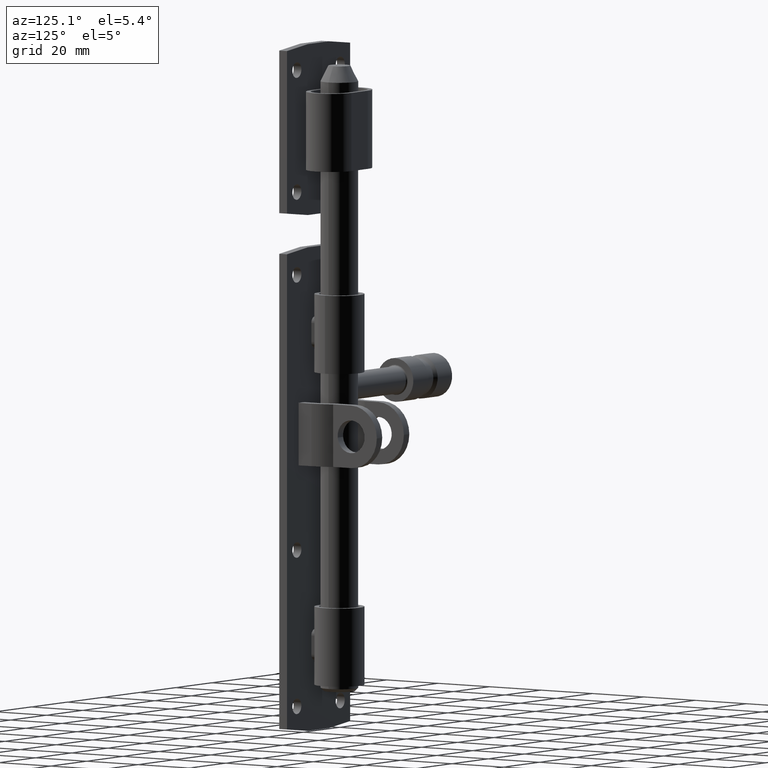
[diagram: clean part render]
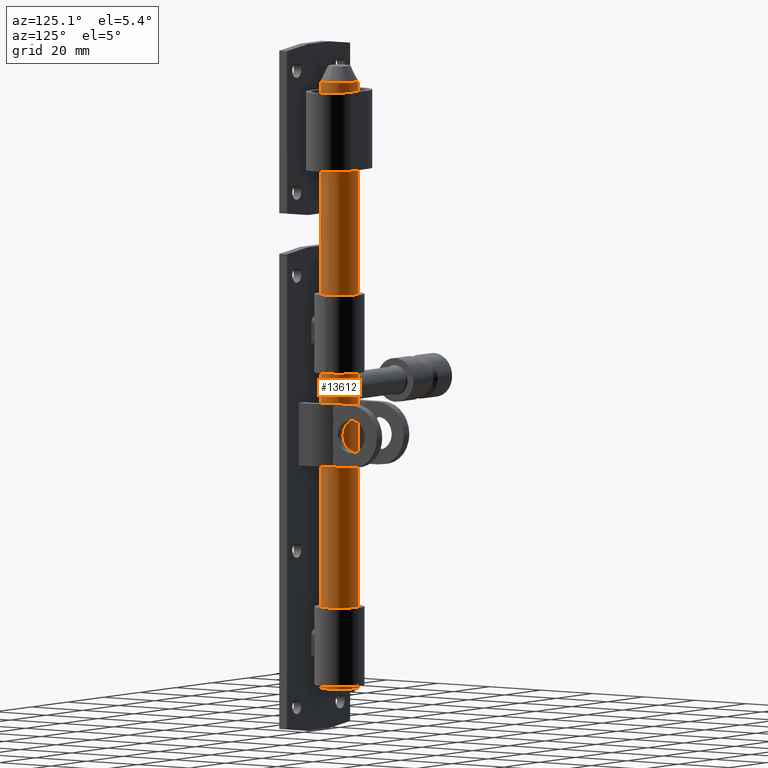
[diagram: same view with one face highlighted and labeled with its STEP entity id]
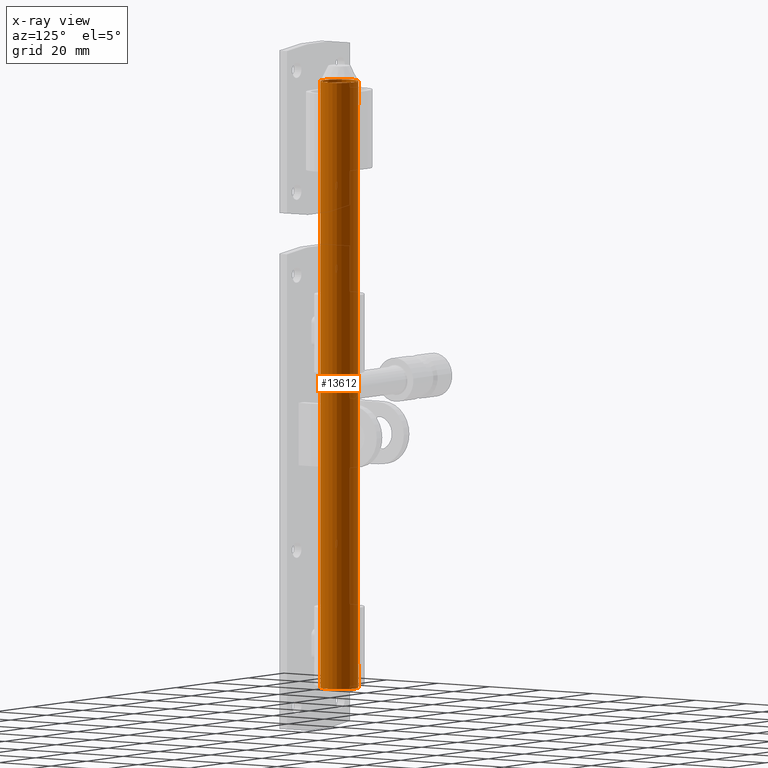
[diagram: x-ray of the same camera — body ghosted, the highlighted face saturated]
A machine part, auxiliary view. The second image highlights one B-rep face of the part: STEP entity #13612.
The next image is the same camera in x-ray: the body ghosted, the highlighted face saturated — about 0% of this face is hidden behind the body in this view.
In plain terms, the highlighted cylindrical surface (bore or boss wall) has radius 6 mm, axis along (-0, 0, 1).
Its self-contained STEP definition (entity closure, byte-faithful):
#484 = AXIS2_PLACEMENT_3D ( 'NONE', #3775, #7487, #10781 ) ;
#767 = CARTESIAN_POINT ( 'NONE',  ( -4.876182250899636195, -3.501452347205308957, 0.3212812770053175004 ) ) ;
#829 = CARTESIAN_POINT ( 'NONE',  ( -4.119458498310473615, -4.362401823535781098, 2.406844786039220807 ) ) ;
#931 = CARTESIAN_POINT ( 'NONE',  ( -5.356217178140141755, -2.742386785429379525, -0.4855079889911355084 ) ) ;
#951 = CIRCLE ( 'NONE', #2317, 6.000000000000000888 ) ;
#991 = CARTESIAN_POINT ( 'NONE',  ( -4.079078214016901960, -4.400127379967562646, 2.853894837149207220 ) ) ;
#1046 = CARTESIAN_POINT ( 'NONE',  ( -5.359216387382920388, 2.710019331444006419, -0.4778194038088954820 ) ) ;
#1095 = CARTESIAN_POINT ( 'NONE',  ( -4.078855240779869717, 4.400334097561946045, 3.299595525962482068 ) ) ;
#1148 = CARTESIAN_POINT ( 'NONE',  ( -5.242624912893310452, 2.926942380360101126, -0.2968974326245630291 ) ) ;
#1197 = CARTESIAN_POINT ( 'NONE',  ( -5.236763218800704500, 2.937315865003099713, 6.287569192124333739 ) ) ;
#1242 = CARTESIAN_POINT ( 'NONE',  ( -5.883159562550352106, 1.187101331769567336, 7.239401888537229546 ) ) ;
#1507 = FACE_OUTER_BOUND ( 'NONE', #12344, .T. ) ;
#1863 = VERTEX_POINT ( 'NONE', #7852 ) ;
#2084 = CARTESIAN_POINT ( 'NONE',  ( -5.002769405489416066, -3.320279772710571287, 5.900374044187419287 ) ) ;
#2138 = CARTESIAN_POINT ( 'NONE',  ( -5.975386480595839878, -0.6176716086659995719, -1.366581132358357875 ) ) ;
#2317 = AXIS2_PLACEMENT_3D ( 'NONE', #6848, #10189, #6692 ) ;
#2353 = CARTESIAN_POINT ( 'NONE',  ( -4.530206988931239742, 3.936972720979849960, 1.015027351017384172 ) ) ;
#3272 = CARTESIAN_POINT ( 'NONE',  ( -4.879399377096567569, -3.497000170542142961, 5.684564800738519885 ) ) ;
#3323 = CARTESIAN_POINT ( 'NONE',  ( -6.000324472206057358, 0.1361782293674078936, -1.400442463101661206 ) ) ;
#3382 = CARTESIAN_POINT ( 'NONE',  ( -4.327010075787804944, -4.159280938274212858, 4.463116672756519243 ) ) ;
#3437 = CARTESIAN_POINT ( 'NONE',  ( -4.207809282064152612, 4.277407876510967100, 1.958049302850194406 ) ) ;
#3538 = CARTESIAN_POINT ( 'NONE',  ( -4.883561649889967882, 3.491284138801022952, 0.3077996218705436604 ) ) ;
#3775 = CARTESIAN_POINT ( 'NONE',  ( 0.000000000000000000, 0.000000000000000000, 100.0000000000000000 ) ) ;
#4329 = CARTESIAN_POINT ( 'NONE',  ( -6.000000000000001776, -0.3041371738367421029, 7.400000000000004796 ) ) ;
#4421 = CARTESIAN_POINT ( 'NONE',  ( -5.663755643958683805, -1.999750683615878044, 6.929972249501288317 ) ) ;
#4438 = CARTESIAN_POINT ( 'NONE',  ( 0.000000000000000000, 0.000000000000000000, -94.99999999999994316 ) ) ;
#4474 = CARTESIAN_POINT ( 'NONE',  ( -4.643590535970413491, -3.804551932649653967, 5.227393758163977999 ) ) ;
#4535 = CARTESIAN_POINT ( 'NONE',  ( -4.640835405587214524, -3.807882432794686522, 0.7783488314576806344 ) ) ;
#4543 = EDGE_LOOP ( 'NONE', ( #5960 ) ) ;
#4594 = CARTESIAN_POINT ( 'NONE',  ( -5.995062273583110724, 0.2858061749085684111, -1.393276026789116218 ) ) ;
#4698 = CARTESIAN_POINT ( 'NONE',  ( -5.956654013580092055, 0.7349973313342398340, -1.340754690508968450 ) ) ;
#4756 = CARTESIAN_POINT ( 'NONE',  ( -4.205434954873228826, 4.279738780110625918, 4.032391979328401987 ) ) ;
#4799 = CARTESIAN_POINT ( 'NONE',  ( -5.976352457819921860, 0.6080253793589346367, 7.367897585819568107 ) ) ;
#5587 = CARTESIAN_POINT ( 'NONE',  ( -5.824268757301169330, -1.468000079639495414, 7.157963497272533893 ) ) ;
#5649 = CARTESIAN_POINT ( 'NONE',  ( -5.821551463900496159, -1.479269013019652634, -1.154187653264800995 ) ) ;
#5866 = CARTESIAN_POINT ( 'NONE',  ( -5.782433123208764236, 1.607160295756457469, 7.098561357013293716 ) ) ;
#5915 = CARTESIAN_POINT ( 'NONE',  ( -4.641918440856381167, 3.806631356463061167, 5.223997767012110494 ) ) ;
#5960 = ORIENTED_EDGE ( 'NONE', *, *, #12362, .T. ) ;
#5963 = CARTESIAN_POINT ( 'NONE',  ( -5.353643259871861737, 2.720964154158717729, 6.469244985893705113 ) ) ;
#6019 = CARTESIAN_POINT ( 'NONE',  ( -5.570383262408290292, 2.244155826469158121, -0.7951544380742155971 ) ) ;
#6076 = CARTESIAN_POINT ( 'NONE',  ( -5.666563511388027941, 1.992165454832102167, -0.9340223946913195352 ) ) ;
#6692 = DIRECTION ( 'NONE',  ( 1.000000000000000000, 0.000000000000000000, 0.000000000000000000 ) ) ;
#6803 = CARTESIAN_POINT ( 'NONE',  ( -4.238277705576128263, -4.247870651384426210, 4.184084353045868454 ) ) ;
#6848 = CARTESIAN_POINT ( 'NONE',  ( 0.000000000000000000, 0.000000000000000000, 99.00000000000001421 ) ) ;
#6964 = CARTESIAN_POINT ( 'NONE',  ( -4.114730262943810501, -4.367653585587019549, 3.608328021983268297 ) ) ;
#7012 = CARTESIAN_POINT ( 'NONE',  ( -4.526119125816945754, 3.941646985341904497, 4.975692143859868466 ) ) ;
#7116 = CARTESIAN_POINT ( 'NONE',  ( -5.827696571553898863, 1.454860095651668850, -1.162768009803049285 ) ) ;
#7487 = DIRECTION ( 'NONE',  ( -0.000000000000000000, -0.000000000000000000, -1.000000000000000000 ) ) ;
#7570 = AXIS2_PLACEMENT_3D ( 'NONE', #4438, #13929, #9036 ) ;
#7852 = CARTESIAN_POINT ( 'NONE',  ( 6.000000000000000888, 0.000000000000000000, 99.00000000000001421 ) ) ;
#7860 = FACE_OUTER_BOUND ( 'NONE', #4543, .T. ) ;
#7978 = CARTESIAN_POINT ( 'NONE',  ( -4.087224738381542544, -4.392616751692844268, 2.704532826553339930 ) ) ;
#8093 = CARTESIAN_POINT ( 'NONE',  ( -4.997505430861676423, -3.328269280509564165, 0.1086358925289199473 ) ) ;
#8147 = CARTESIAN_POINT ( 'NONE',  ( -5.240267209439633866, -2.931136139322703116, 6.293154763752141889 ) ) ;
#8167 = EDGE_LOOP ( 'NONE', ( #11233 ) ) ;
#8285 = CIRCLE ( 'NONE', #7570, 6.000000000000000888 ) ;
#8322 = CARTESIAN_POINT ( 'NONE',  ( -5.891354502271763494, 1.174621039668891198, -1.250853426565161852 ) ) ;
#8364 = CARTESIAN_POINT ( 'NONE',  ( -4.079581788307303114, 4.399660518484937555, 2.690670125225652853 ) ) ;
#9036 = DIRECTION ( 'NONE',  ( 1.000000000000000000, 0.000000000000000000, 0.000000000000000000 ) ) ;
#9179 = CARTESIAN_POINT ( 'NONE',  ( -4.322810422085614057, -4.163637627020619902, 1.549109297368927329 ) ) ;
#9231 = CARTESIAN_POINT ( 'NONE',  ( -5.355032329999035667, -2.718366343927626438, 6.471401771842026918 ) ) ;
#9277 = CARTESIAN_POINT ( 'NONE',  ( -5.886153779110469664, -1.199981457066384261, -1.243653320467741130 ) ) ;
#9328 = CARTESIAN_POINT ( 'NONE',  ( -4.236164906140939657, -4.249970637076632585, 1.823073297070977983 ) ) ;
#9332 = VERTEX_POINT ( 'NONE', #10281 ) ;
#9388 = CARTESIAN_POINT ( 'NONE',  ( -4.374731103766589690, 4.106983271730283214, 4.585141478486624678 ) ) ;
#9449 = CARTESIAN_POINT ( 'NONE',  ( -6.000000000000001776, 0.3041371738367415478, 7.400000000000006573 ) ) ;
#9492 = CARTESIAN_POINT ( 'NONE',  ( -4.878766801593251934, 3.497925612594116718, 5.683491151548811793 ) ) ;
#9551 = CARTESIAN_POINT ( 'NONE',  ( -4.331067453322242855, 4.152777633197652030, 1.538706934207907606 ) ) ;
#9779 = EDGE_CURVE ( 'NONE', #9332, #9332, #11651, .T. ) ;
#10079 = CARTESIAN_POINT ( 'NONE',  ( 6.000000000000000888, 0.000000000000000000, -94.99999999999994316 ) ) ;
#10189 = DIRECTION ( 'NONE',  ( 0.000000000000000000, 0.000000000000000000, -1.000000000000000000 ) ) ;
#10263 = FACE_BOUND ( 'NONE', #8167, .T. ) ;
#10281 = CARTESIAN_POINT ( 'NONE',  ( -6.000000000000000888, 0.000000000000000000, 7.400000000000003020 ) ) ;
#10347 = CARTESIAN_POINT ( 'NONE',  ( -4.525760606494264593, -3.942088173435309262, 1.024929633409320529 ) ) ;
#10442 = CARTESIAN_POINT ( 'NONE',  ( -5.999304709954434323, -0.3132030088502395504, -1.399051875135670864 ) ) ;
#10501 = CARTESIAN_POINT ( 'NONE',  ( -5.576417289710986047, -2.284373710648264666, -0.8057435851316304687 ) ) ;
#10594 = CARTESIAN_POINT ( 'NONE',  ( -4.114495591172188327, 4.367886721891684587, 2.392477840701733083 ) ) ;
#10646 = CARTESIAN_POINT ( 'NONE',  ( -4.645867336781847712, 3.801862177294592637, 0.7677697702296024662 ) ) ;
#10698 = CARTESIAN_POINT ( 'NONE',  ( -4.112823127532090339, 4.369447867207782110, 3.596585480556598213 ) ) ;
#10781 = DIRECTION ( 'NONE',  ( -1.000000000000000000, 0.000000000000000000, 0.000000000000000000 ) ) ;
#11233 = ORIENTED_EDGE ( 'NONE', *, *, #9779, .T. ) ;
#11351 = ORIENTED_EDGE ( 'NONE', *, *, #14386, .T. ) ;
#11432 = CARTESIAN_POINT ( 'NONE',  ( -6.000000000000001776, -2.710505431213761085E-16, 7.400000000000005684 ) ) ;
#11590 = CARTESIAN_POINT ( 'NONE',  ( -5.889679250371120389, -1.182381027996282530, 7.248532858740496465 ) ) ;
#11643 = CARTESIAN_POINT ( 'NONE',  ( -5.977030140924054713, -0.6012131586243435466, 7.368821246636239941 ) ) ;
#11651 = B_SPLINE_CURVE_WITH_KNOTS ( 'NONE', 3,
 ( #11432, #4329, #11643, #11590, #5587, #4421, #14079, #9231, #8147, #2084, #3272, #4474, #12789, #3382, #6803, #6964, #15047, #991, #7978, #829, #15163, #9328, #9179, #10347, #4535, #767, #8093, #931, #10501, #5649, #9277, #2138, #10442, #3323, #4594, #15263, #4698, #8322, #7116, #6076, #6019, #1046, #1148, #14266, #3538, #10646, #2353, #13003, #9551, #11847, #3437, #10594, #8364, #1095, #10698, #4756, #15363, #13058, #9388, #7012, #5915, #9492, #12955, #1197, #5963, #14180, #11891, #5866, #11947, #1242, #14230, #4799, #9449, #11741 ),
 .UNSPECIFIED., .T., .F.,
 ( 4, 2, 2, 2, 2, 2, 2, 2, 2, 2, 2, 2, 2, 2, 2, 2, 2, 2, 2, 2, 2, 2, 2, 2, 2, 2, 2, 2, 2, 2, 2, 2, 2, 2, 2, 2, 4 ),
 ( 0.000000000000000000, 0.0008976116784972113048, 0.001795223356994422610, 0.002692835035491634131, 0.003590446713988845219, 0.004488058392486057174, 0.005385670070983268262, 0.006283281749480479350, 0.007180893427977692173, 0.007629699267226298584, 0.008078505106474903261, 0.008976116784972114349, 0.009873728463469325436, 0.01077134014196653826, 0.01256656349896096043, 0.01346417517745817326, 0.01436178685595538435, 0.01481059269520399076, 0.01525939853445259717, 0.01615701021294980652, 0.01705462189144701934, 0.01795223356994422870, 0.01884984524844144152, 0.01974745692693865087, 0.02019626276618725902, 0.02064506860543586370, 0.02154268028393307652, 0.02244029196243028240, 0.02288909780167889055, 0.02333790364092749522, 0.02423551531942471152, 0.02513312699792192087, 0.02603073867641913716, 0.02692835035491635345, 0.02737715619416495813, 0.02782596203341356281, 0.02872357371191077563 ),
 .UNSPECIFIED. ) ;
#11741 = CARTESIAN_POINT ( 'NONE',  ( -6.000000000000001776, -2.710505431213761085E-16, 7.400000000000005684 ) ) ;
#11847 = CARTESIAN_POINT ( 'NONE',  ( -4.245899319418186657, 4.239816779694386639, 1.814718105453108743 ) ) ;
#11891 = CARTESIAN_POINT ( 'NONE',  ( -5.660898571073210483, 2.008037731361778100, 6.925870874501852015 ) ) ;
#11947 = CARTESIAN_POINT ( 'NONE',  ( -5.819370089303808058, 1.468232874592092063, 7.150425299940858181 ) ) ;
#12344 = EDGE_LOOP ( 'NONE', ( #11351 ) ) ;
#12362 = EDGE_CURVE ( 'NONE', #14855, #14855, #8285, .T. ) ;
#12789 = CARTESIAN_POINT ( 'NONE',  ( -4.530024380792111671, -3.937196112576742735, 4.984644827847012571 ) ) ;
#12955 = CARTESIAN_POINT ( 'NONE',  ( -4.999891804583934452, 3.324544396310149530, 5.895399841259706619 ) ) ;
#13003 = CARTESIAN_POINT ( 'NONE',  ( -4.378315942083916390, 4.103167301411078327, 1.405012303380346772 ) ) ;
#13046 = CYLINDRICAL_SURFACE ( 'NONE', #484, 6.000000000000000888 ) ;
#13058 = CARTESIAN_POINT ( 'NONE',  ( -4.327730597344936037, 4.156247789179609242, 4.451374416214591179 ) ) ;
#13612 = ADVANCED_FACE ( 'NONE', ( #7860, #1507, #10263 ), #13046, .T. ) ;
#13929 = DIRECTION ( 'NONE',  ( -0.000000000000000000, -0.000000000000000000, 1.000000000000000000 ) ) ;
#14079 = CARTESIAN_POINT ( 'NONE',  ( -5.567629115732094292, -2.251087040695141095, 6.791141381768929008 ) ) ;
#14180 = CARTESIAN_POINT ( 'NONE',  ( -5.565375350121374964, 2.256488265967601770, 6.787818291037173601 ) ) ;
#14230 = CARTESIAN_POINT ( 'NONE',  ( -5.910273364848801947, 1.044169355644739783, 7.276887466636305035 ) ) ;
#14266 = CARTESIAN_POINT ( 'NONE',  ( -5.005079945376836648, 3.316818116150513251, 0.09565119801869349792 ) ) ;
#14386 = EDGE_CURVE ( 'NONE', #1863, #1863, #951, .T. ) ;
#14855 = VERTEX_POINT ( 'NONE', #10079 ) ;
#15047 = CARTESIAN_POINT ( 'NONE',  ( -4.079495678176965789, -4.399740350948635026, 3.303571339954728181 ) ) ;
#15163 = CARTESIAN_POINT ( 'NONE',  ( -4.143837898919896290, -4.339405875172722915, 2.257431235146068360 ) ) ;
#15263 = CARTESIAN_POINT ( 'NONE',  ( -5.973319791441355164, 0.5847285720147176180, -1.363559546315995297 ) ) ;
#15363 = CARTESIAN_POINT ( 'NONE',  ( -4.243187035322304901, 4.242524200464703021, 4.175530429029367774 ) ) ;